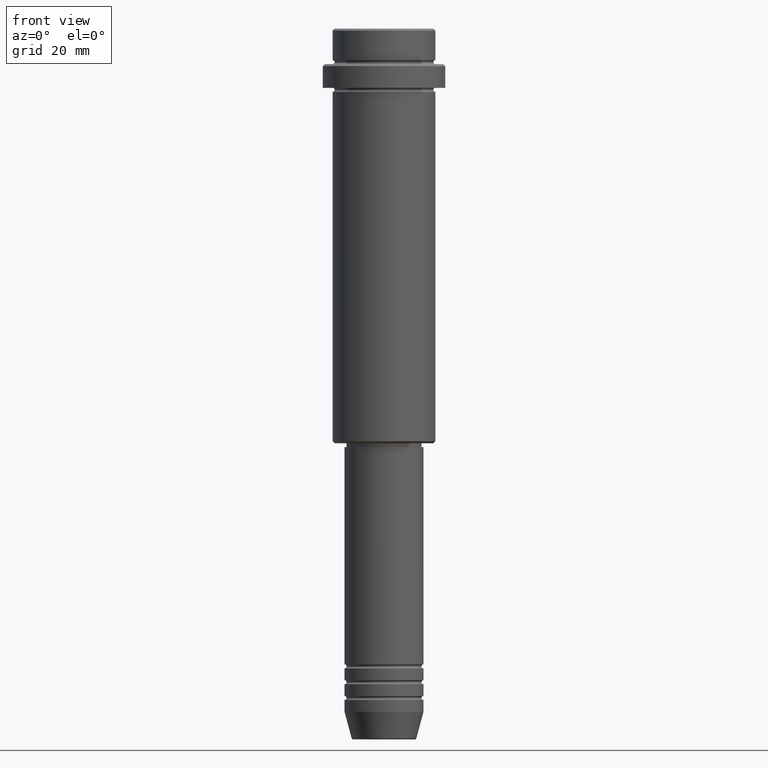
[diagram: clean part render]
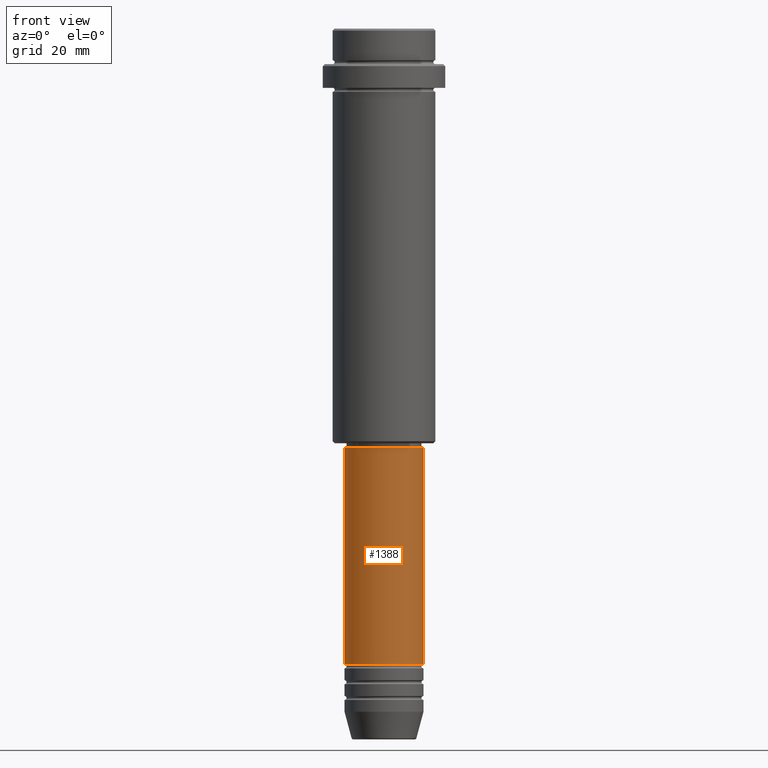
[diagram: same view with one face highlighted and labeled with its STEP entity id]
A machine part, front view. The second image highlights one B-rep face of the part: STEP entity #1388.
In plain terms, the highlighted cylindrical surface (partial cylindrical patch) has radius 10 mm, axis along (-0, -0, 1).
Its self-contained STEP definition (entity closure, byte-faithful):
#14 = CARTESIAN_POINT ( 'NONE',  ( 0.000000000000000000, 0.000000000000000000, -160.9999999999998579 ) ) ;
#77 = AXIS2_PLACEMENT_3D ( 'NONE', #558, #665, #659 ) ;
#103 = CARTESIAN_POINT ( 'NONE',  ( 10.00000000000000178, 0.000000000000000000, -105.9999999999999858 ) ) ;
#104 = ORIENTED_EDGE ( 'NONE', *, *, #1001, .F. ) ;
#111 = ORIENTED_EDGE ( 'NONE', *, *, #709, .T. ) ;
#117 = CARTESIAN_POINT ( 'NONE',  ( -10.00000000000000000, 1.224646799147353256E-15, -160.9999999999998579 ) ) ;
#129 = VERTEX_POINT ( 'NONE', #810 ) ;
#131 = DIRECTION ( 'NONE',  ( -0.000000000000000000, -0.000000000000000000, 1.000000000000000000 ) ) ;
#161 = VECTOR ( 'NONE', #379, 1000.000000000000000 ) ;
#209 = CYLINDRICAL_SURFACE ( 'NONE', #77, 10.00000000000000178 ) ;
#216 = VERTEX_POINT ( 'NONE', #913 ) ;
#238 = EDGE_CURVE ( 'NONE', #129, #300, #502, .T. ) ;
#284 = LINE ( 'NONE', #728, #1374 ) ;
#300 = VERTEX_POINT ( 'NONE', #103 ) ;
#334 = DIRECTION ( 'NONE',  ( 1.000000000000000000, 0.000000000000000000, 0.000000000000000000 ) ) ;
#363 = CIRCLE ( 'NONE', #556, 10.00000000000000000 ) ;
#373 = CARTESIAN_POINT ( 'NONE',  ( -10.00000000000000178, 1.224646799147353454E-15, 0.000000000000000000 ) ) ;
#379 = DIRECTION ( 'NONE',  ( -0.000000000000000000, -0.000000000000000000, 1.000000000000000000 ) ) ;
#421 = DIRECTION ( 'NONE',  ( -0.000000000000000000, -0.000000000000000000, 1.000000000000000000 ) ) ;
#422 = DIRECTION ( 'NONE',  ( 1.000000000000000000, 0.000000000000000000, 0.000000000000000000 ) ) ;
#423 = ORIENTED_EDGE ( 'NONE', *, *, #238, .F. ) ;
#491 = LINE ( 'NONE', #373, #161 ) ;
#502 = CIRCLE ( 'NONE', #849, 10.00000000000000178 ) ;
#556 = AXIS2_PLACEMENT_3D ( 'NONE', #14, #131, #334 ) ;
#558 = CARTESIAN_POINT ( 'NONE',  ( 0.000000000000000000, 0.000000000000000000, 0.000000000000000000 ) ) ;
#641 = CARTESIAN_POINT ( 'NONE',  ( 0.000000000000000000, 0.000000000000000000, -105.9999999999999858 ) ) ;
#659 = DIRECTION ( 'NONE',  ( 1.000000000000000000, 0.000000000000000000, 0.000000000000000000 ) ) ;
#665 = DIRECTION ( 'NONE',  ( -0.000000000000000000, -0.000000000000000000, 1.000000000000000000 ) ) ;
#709 = EDGE_CURVE ( 'NONE', #216, #300, #284, .T. ) ;
#728 = CARTESIAN_POINT ( 'NONE',  ( 10.00000000000000178, 0.000000000000000000, 0.000000000000000000 ) ) ;
#810 = CARTESIAN_POINT ( 'NONE',  ( -10.00000000000000178, 1.224646799147353454E-15, -105.9999999999999858 ) ) ;
#849 = AXIS2_PLACEMENT_3D ( 'NONE', #641, #854, #422 ) ;
#854 = DIRECTION ( 'NONE',  ( -0.000000000000000000, -0.000000000000000000, 1.000000000000000000 ) ) ;
#913 = CARTESIAN_POINT ( 'NONE',  ( 10.00000000000000000, 0.000000000000000000, -160.9999999999998579 ) ) ;
#932 = EDGE_CURVE ( 'NONE', #1384, #216, #363, .T. ) ;
#1001 = EDGE_CURVE ( 'NONE', #1384, #129, #491, .T. ) ;
#1191 = FACE_OUTER_BOUND ( 'NONE', #1243, .T. ) ;
#1243 = EDGE_LOOP ( 'NONE', ( #104, #1327, #111, #423 ) ) ;
#1327 = ORIENTED_EDGE ( 'NONE', *, *, #932, .T. ) ;
#1374 = VECTOR ( 'NONE', #421, 1000.000000000000000 ) ;
#1384 = VERTEX_POINT ( 'NONE', #117 ) ;
#1388 = ADVANCED_FACE ( 'NONE', ( #1191 ), #209, .T. ) ;